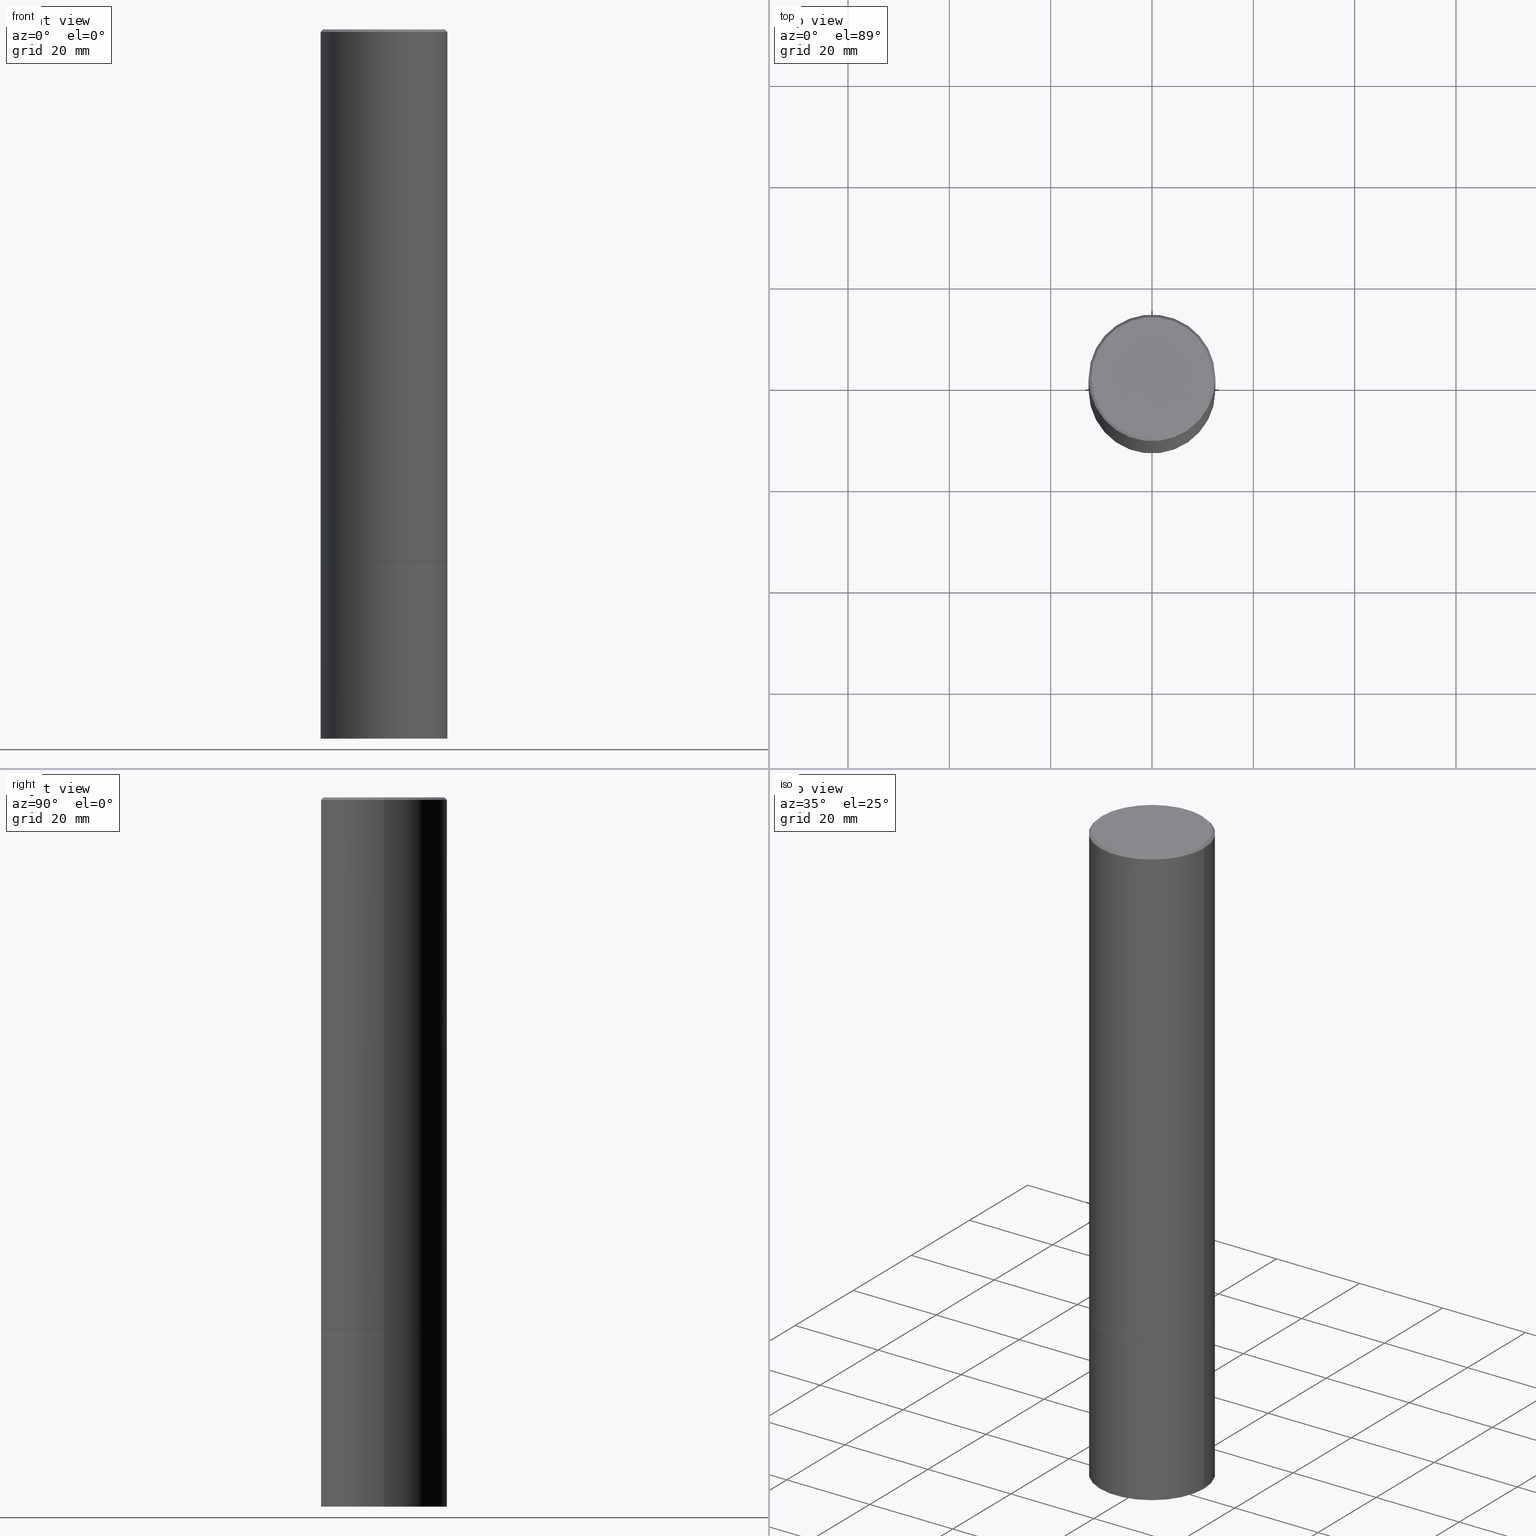
[diagram: canonical four-view strip — front | top / right | iso, engineering-drawing reading convention]
A machine part, canonical four-view strip (front | top / right | iso — engineering-drawing reading convention). The complete STEP part file that produces these views, byte-faithful:
ISO-10303-21;
HEADER;
FILE_DESCRIPTION (( 'STEP AP203' ),
    '1' );
FILE_NAME ('45002.STEP',
    '2024-02-28T08:33:19',
    ( '' ),
    ( '' ),
    'SwSTEP 2.0',
    'SolidWorks 2023',
    '' );
FILE_SCHEMA (( 'CONFIG_CONTROL_DESIGN' ));
ENDSEC;

DATA;
#1 = AXIS2_PLACEMENT_3D ( 'NONE', #114, #33, #11 ) ;
#2 = LOCAL_TIME ( 3, 33, 19.00000000000000000, #49 ) ;
#3 = FACE_OUTER_BOUND ( 'NONE', #264, .T. ) ;
#4 = ADVANCED_FACE ( 'NONE', ( #111 ), #324, .F. ) ;
#5 = PERSON ( 'UNSPECIFIED', 'UNSPECIFIED', 'UNSPECIFIED', ('UNSPECIFIED'), ('UNSPECIFIED'), ('UNSPECIFIED') ) ;
#6 = CARTESIAN_POINT ( 'NONE',  ( 1.010907895100811684E-28, -1.443308555850979562E-14, -4.133799999999999919 ) ) ;
#7 = AXIS2_PLACEMENT_3D ( 'NONE', #140, #198, #321 ) ;
#8 = AXIS2_PLACEMENT_3D ( 'NONE', #121, #335, #299 ) ;
#9 = DIRECTION ( 'NONE',  ( 1.000000000000000000, -6.982962677686264344E-15, 0.000000000000000000 ) ) ;
#10 = CC_DESIGN_APPROVAL ( #284, ( #180 ) ) ;
#11 = DIRECTION ( 'NONE',  ( -1.000000000000000000, 6.982962677686265922E-15, -4.876176775795935793E-29 ) ) ;
#12 = ADVANCED_FACE ( 'NONE', ( #86 ), #228, .T. ) ;
#13 = ORIENTED_EDGE ( 'NONE', *, *, #364, .F. ) ;
#14 = DIRECTION ( 'NONE',  ( -2.445468806185136597E-29, 3.491481338843145583E-15, 1.000000000000000000 ) ) ;
#15 = AXIS2_PLACEMENT_3D ( 'NONE', #325, #224, #270 ) ;
#16 = CALENDAR_DATE ( 2024, 28, 2 ) ;
#17 = ORIENTED_EDGE ( 'NONE', *, *, #92, .F. ) ;
#18 = EDGE_CURVE ( 'NONE', #265, #61, #288, .T. ) ;
#19 = DIRECTION ( 'NONE',  ( 1.000000000000000000, -6.982962677686264344E-15, 0.000000000000000000 ) ) ;
#20 = CARTESIAN_POINT ( 'NONE',  ( -0.4911499999999999755, -1.094325491182406373E-14, -4.133799999999999919 ) ) ;
#21 = LINE ( 'NONE', #277, #245 ) ;
#22 = EDGE_LOOP ( 'NONE', ( #302, #66, #205, #350 ) ) ;
#23 = CIRCLE ( 'NONE', #291, 0.4721499999999996255 ) ;
#24 = CIRCLE ( 'NONE', #217, 0.4921499999999999764 ) ;
#25 = ADVANCED_FACE ( 'NONE', ( #107 ), #59, .T. ) ;
#26 = PERSON_AND_ORGANIZATION ( #5, #237 ) ;
#27 = PERSON_AND_ORGANIZATION_ROLE ( 'design_owner' ) ;
#28 = ORIENTED_EDGE ( 'NONE', *, *, #92, .T. ) ;
#29 = CARTESIAN_POINT ( 'NONE',  ( 0.4921499999999999764, -1.786975064033308982E-14, -4.133799999999999919 ) ) ;
#30 = DIRECTION ( 'NONE',  ( -2.445468806185136877E-29, 3.491481338843145188E-15, 1.000000000000000000 ) ) ;
#31 =( GEOMETRIC_REPRESENTATION_CONTEXT ( 3 ) GLOBAL_UNCERTAINTY_ASSIGNED_CONTEXT ( ( #195 ) ) GLOBAL_UNIT_ASSIGNED_CONTEXT ( ( #127, #179, #182 ) ) REPRESENTATION_CONTEXT ( 'NONE', 'WORKASPACE' ) );
#32 = CIRCLE ( 'NONE', #8, 0.4921499999999999764 ) ;
#33 = DIRECTION ( 'NONE',  ( 2.438088387897960049E-29, -3.491481338843145188E-15, -1.000000000000000000 ) ) ;
#34 = CIRCLE ( 'NONE', #289, 0.4921499999999996988 ) ;
#35 = CARTESIAN_POINT ( 'NONE',  ( 4.890937612370302936E-31, -6.982962677686332285E-17, -0.02000000000000011838 ) ) ;
#36 = ORIENTED_EDGE ( 'NONE', *, *, #353, .F. ) ;
#37 = MANIFOLD_SOLID_BREP ( 'Body-Move/Copy2[2]', #272 ) ;
#38 = DATE_AND_TIME ( #341, #2 ) ;
#39 = VERTEX_POINT ( 'NONE', #222 ) ;
#40 = VECTOR ( 'NONE', #238, 39.37007874015748854 ) ;
#41 = CARTESIAN_POINT ( 'NONE',  ( -0.4721499999999996255, 3.331920641657999252E-15, 8.537024980177643606E-18 ) ) ;
#42 = MANIFOLD_SOLID_BREP ( 'Body-Move/Copy2[1]', #354 ) ;
#43 = DIRECTION ( 'NONE',  ( 1.000000000000000000, 0.000000000000000000, 0.000000000000000000 ) ) ;
#44 = AXIS2_PLACEMENT_3D ( 'NONE', #183, #126, #19 ) ;
#45 = FACE_OUTER_BOUND ( 'NONE', #172, .T. ) ;
#46 = ORIENTED_EDGE ( 'NONE', *, *, #18, .F. ) ;
#47 = LINE ( 'NONE', #361, #58 ) ;
#48 = EDGE_LOOP ( 'NONE', ( #276, #309 ) ) ;
#49 = COORDINATED_UNIVERSAL_TIME_OFFSET ( 5, 0, .BEHIND. ) ;
#50 = APPROVAL_DATE_TIME ( #167, #170 ) ;
#51 = ORIENTED_EDGE ( 'NONE', *, *, #135, .F. ) ;
#52 = CARTESIAN_POINT ( 'NONE',  ( 1.010907895100811684E-28, -1.443308555850979562E-14, -4.133799999999999919 ) ) ;
#53 = ORIENTED_EDGE ( 'NONE', *, *, #281, .F. ) ;
#54 = DIRECTION ( 'NONE',  ( 0.7071067811866199593, -2.468850131083015945E-15, 0.7071067811864750752 ) ) ;
#55 = DIRECTION ( 'NONE',  ( -2.445468806185136597E-29, 3.491481338843145583E-15, 1.000000000000000000 ) ) ;
#56 = ADVANCED_FACE ( 'NONE', ( #110 ), #207, .T. ) ;
#57 = CARTESIAN_POINT ( 'NONE',  ( 1.010907895100811684E-28, -1.443308555850979562E-14, -4.133799999999999919 ) ) ;
#58 = VECTOR ( 'NONE', #93, 39.37007874015748143 ) ;
#59 = CYLINDRICAL_SURFACE ( 'NONE', #7, 0.4921499999999999764 ) ;
#60 = VERTEX_POINT ( 'NONE', #171 ) ;
#61 = VERTEX_POINT ( 'NONE', #296 ) ;
#62 = CARTESIAN_POINT ( 'NONE',  ( 0.000000000000000000, 0.000000000000000000, 0.000000000000000000 ) ) ;
#63 = AXIS2_PLACEMENT_3D ( 'NONE', #197, #344, #279 ) ;
#64 = EDGE_LOOP ( 'NONE', ( #46, #358, #138, #36 ) ) ;
#65 = PERSON_AND_ORGANIZATION ( #5, #237 ) ;
#66 = ORIENTED_EDGE ( 'NONE', *, *, #345, .T. ) ;
#67 = ADVANCED_FACE ( 'NONE', ( #133 ), #99, .T. ) ;
#68 = SHAPE_DEFINITION_REPRESENTATION ( #300, #142 ) ;
#69 = AXIS2_PLACEMENT_3D ( 'NONE', #6, #71, #359 ) ;
#70 = DIRECTION ( 'NONE',  ( -1.000000000000000000, 6.982962677686265922E-15, -4.876176775795935793E-29 ) ) ;
#71 = DIRECTION ( 'NONE',  ( -2.445468806185136597E-29, 3.491481338843145583E-15, 1.000000000000000000 ) ) ;
#72 = DIRECTION ( 'NONE',  ( 1.000000000000000000, -6.982962677686265922E-15, 4.876176775795935793E-29 ) ) ;
#73 = EDGE_LOOP ( 'NONE', ( #311, #164, #290, #235 ) ) ;
#74 = EDGE_CURVE ( 'NONE', #286, #60, #77, .T. ) ;
#75 = ORIENTED_EDGE ( 'NONE', *, *, #345, .F. ) ;
#76 = LINE ( 'NONE', #20, #360 ) ;
#77 = CIRCLE ( 'NONE', #200, 0.4921499999999996988 ) ;
#78 = ORIENTED_EDGE ( 'NONE', *, *, #247, .T. ) ;
#79 = DIRECTION ( 'NONE',  ( 1.000000000000000000, -6.982962677686265922E-15, 4.876176775795935793E-29 ) ) ;
#80 = APPROVAL_ROLE ( '' ) ;
#81 = APPROVAL_ROLE ( '' ) ;
#82 = PRODUCT ( '45002', '45002', '', ( #251 ) ) ;
#83 = ADVANCED_FACE ( 'NONE', ( #115 ), #118, .T. ) ;
#84 = COORDINATED_UNIVERSAL_TIME_OFFSET ( 5, 0, .BEHIND. ) ;
#85 = APPROVAL_ROLE ( '' ) ;
#86 = FACE_OUTER_BOUND ( 'NONE', #268, .T. ) ;
#87 = VECTOR ( 'NONE', #30, 39.37007874015748143 ) ;
#88 = APPROVAL_DATE_TIME ( #191, #284 ) ;
#89 = ORIENTED_EDGE ( 'NONE', *, *, #281, .T. ) ;
#90 = PERSON_AND_ORGANIZATION ( #5, #237 ) ;
#91 = CIRCLE ( 'NONE', #188, 0.4911499999999999755 ) ;
#92 = EDGE_CURVE ( 'NONE', #39, #286, #21, .T. ) ;
#93 = DIRECTION ( 'NONE',  ( -2.445468806185136877E-29, 3.491481338843145188E-15, 1.000000000000000000 ) ) ;
#94 = CARTESIAN_POINT ( 'NONE',  ( -0.4921499999999999764, -1.334178012692939009E-14, -5.511800000000000033 ) ) ;
#95 = ORIENTED_EDGE ( 'NONE', *, *, #108, .F. ) ;
#96 = CYLINDRICAL_SURFACE ( 'NONE', #223, 0.4921499999999998098 ) ;
#97 = PLANE ( 'NONE',  #193 ) ;
#98 = DATE_TIME_ROLE ( 'classification_date' ) ;
#99 = CONICAL_SURFACE ( 'NONE', #333, 0.4921499999999996988, 0.7853981633974466137 ) ;
#100 = APPROVAL_PERSON_ORGANIZATION ( #119, #220, #80 ) ;
#101 = FACE_OUTER_BOUND ( 'NONE', #293, .T. ) ;
#102 = VERTEX_POINT ( 'NONE', #231 ) ;
#103 = CARTESIAN_POINT ( 'NONE',  ( 0.4721499999999996255, -3.342703923013973396E-15, 8.537024980224040028E-18 ) ) ;
#104 = CARTESIAN_POINT ( 'NONE',  ( 4.890937612370302936E-31, -6.982962677686332285E-17, -0.02000000000000011838 ) ) ;
#105 = PERSON_AND_ORGANIZATION ( #5, #237 ) ;
#106 = FACE_OUTER_BOUND ( 'NONE', #73, .T. ) ;
#107 = FACE_OUTER_BOUND ( 'NONE', #330, .T. ) ;
#108 = EDGE_CURVE ( 'NONE', #214, #186, #23, .T. ) ;
#109 = AXIS2_PLACEMENT_3D ( 'NONE', #35, #145, #352 ) ;
#110 = FACE_OUTER_BOUND ( 'NONE', #22, .T. ) ;
#111 = FACE_OUTER_BOUND ( 'NONE', #48, .T. ) ;
#112 = CARTESIAN_POINT ( 'NONE',  ( -2.087702828670439639E-46, 2.980686340760894400E-32, 8.537024980200822558E-18 ) ) ;
#113 = DIMENSIONAL_EXPONENTS ( 1.000000000000000000, 0.000000000000000000, 0.000000000000000000, 0.000000000000000000, 0.000000000000000000, 0.000000000000000000, 0.000000000000000000 ) ;
#114 = CARTESIAN_POINT ( 'NONE',  ( 3.436665081823396751E-15, 0.4921499999999855435, -4.133800000000001695 ) ) ;
#115 = FACE_OUTER_BOUND ( 'NONE', #64, .T. ) ;
#116 = EDGE_CURVE ( 'NONE', #130, #61, #312, .T. ) ;
#117 = CC_DESIGN_APPROVAL ( #170, ( #156 ) ) ;
#118 = CYLINDRICAL_SURFACE ( 'NONE', #262, 0.4921499999999999764 ) ;
#119 = PERSON_AND_ORGANIZATION ( #5, #237 ) ;
#120 = ORIENTED_EDGE ( 'NONE', *, *, #232, .F. ) ;
#121 = CARTESIAN_POINT ( 'NONE',  ( 1.010663348220193347E-28, -1.442959407717095419E-14, -4.132800000000000473 ) ) ;
#122 = FACE_OUTER_BOUND ( 'NONE', #185, .T. ) ;
#123 = CC_DESIGN_DATE_AND_TIME_ASSIGNMENT ( #218, #98, ( #180 ) ) ;
#124 = CIRCLE ( 'NONE', #44, 0.4911499999999999755 ) ;
#125 =( LENGTH_UNIT ( ) NAMED_UNIT ( * ) SI_UNIT ( $, .METRE. ) );
#126 = DIRECTION ( 'NONE',  ( -2.445468806185136597E-29, 3.491481338843145583E-15, 1.000000000000000000 ) ) ;
#127 =( CONVERSION_BASED_UNIT ( 'INCH', #242 ) LENGTH_UNIT ( ) NAMED_UNIT ( #113 ) );
#128 = DIRECTION ( 'NONE',  ( -2.445468806185136597E-29, 3.491481338843145583E-15, 1.000000000000000000 ) ) ;
#129 = DIRECTION ( 'NONE',  ( 2.438088387897960049E-29, -3.491481338843145188E-15, -1.000000000000000000 ) ) ;
#130 = VERTEX_POINT ( 'NONE', #29 ) ;
#131 = PERSON_AND_ORGANIZATION ( #5, #237 ) ;
#132 = LOCAL_TIME ( 3, 33, 19.00000000000000000, #278 ) ;
#133 = FACE_OUTER_BOUND ( 'NONE', #298, .T. ) ;
#134 = DIRECTION ( 'NONE',  ( 1.000000000000000000, -6.982962677686264344E-15, 0.000000000000000000 ) ) ;
#135 = EDGE_CURVE ( 'NONE', #186, #214, #169, .T. ) ;
#136 = DIRECTION ( 'NONE',  ( 1.000000000000000000, -6.982962677686265922E-15, 0.000000000000000000 ) ) ;
#137 = VECTOR ( 'NONE', #139, 39.37007874015748854 ) ;
#138 = ORIENTED_EDGE ( 'NONE', *, *, #308, .T. ) ;
#139 = DIRECTION ( 'NONE',  ( -0.7071067811865462405, 2.468850131082243650E-15, -0.7071067811865486830 ) ) ;
#140 = CARTESIAN_POINT ( 'NONE',  ( 0.000000000000000000, 0.000000000000000000, 0.000000000000000000 ) ) ;
#141 = EDGE_CURVE ( 'NONE', #214, #286, #239, .T. ) ;
#142 = ADVANCED_BREP_SHAPE_REPRESENTATION ( '45002', ( #42, #37, #254 ), #31 ) ;
#143 = AXIS2_PLACEMENT_3D ( 'NONE', #260, #297, #337 ) ;
#144 = ORIENTED_EDGE ( 'NONE', *, *, #342, .F. ) ;
#145 = DIRECTION ( 'NONE',  ( 2.445468806185136597E-29, -3.491481338843145583E-15, -1.000000000000000000 ) ) ;
#146 = DIRECTION ( 'NONE',  ( -2.445468806185136597E-29, 3.491481338843145583E-15, 1.000000000000000000 ) ) ;
#147 = CC_DESIGN_PERSON_AND_ORGANIZATION_ASSIGNMENT ( #131, #210, ( #266 ) ) ;
#148 = COORDINATED_UNIVERSAL_TIME_OFFSET ( 5, 0, .BEHIND. ) ;
#149 = DIRECTION ( 'NONE',  ( 1.000000000000000000, -6.982962677686265922E-15, 0.000000000000000000 ) ) ;
#150 = CARTESIAN_POINT ( 'NONE',  ( 1.347893496593123646E-28, -1.924434684343564878E-14, -5.511800000000000033 ) ) ;
#151 = APPLICATION_PROTOCOL_DEFINITION ( 'international standard', 'config_control_design', 1994, #316 ) ;
#152 = CARTESIAN_POINT ( 'NONE',  ( 0.000000000000000000, 0.000000000000000000, 0.000000000000000000 ) ) ;
#153 = CIRCLE ( 'NONE', #69, 0.4921499999999999764 ) ;
#154 = CARTESIAN_POINT ( 'NONE',  ( 0.4921499999999996988, -3.446223716380120377E-15, -0.02000000000000011838 ) ) ;
#155 = DIRECTION ( 'NONE',  ( 1.000000000000000000, -6.982962677686265922E-15, 4.876176775795935793E-29 ) ) ;
#156 = PRODUCT_DEFINITION ( 'UNKNOWN', '', #266, #165 ) ;
#157 = CARTESIAN_POINT ( 'NONE',  ( 3.436665081823430672E-15, 0.4921499999999807140, -5.511800000000001809 ) ) ;
#158 = ORIENTED_EDGE ( 'NONE', *, *, #141, .T. ) ;
#159 = APPROVAL_DATE_TIME ( #38, #220 ) ;
#160 = VERTEX_POINT ( 'NONE', #303 ) ;
#161 = PERSON_AND_ORGANIZATION ( #5, #237 ) ;
#162 = LOCAL_TIME ( 3, 33, 19.00000000000000000, #84 ) ;
#163 = DIRECTION ( 'NONE',  ( -2.445468806185136597E-29, 3.491481338843145583E-15, 1.000000000000000000 ) ) ;
#164 = ORIENTED_EDGE ( 'NONE', *, *, #206, .T. ) ;
#165 = DESIGN_CONTEXT ( 'detailed design', #236, 'design' ) ;
#166 = CARTESIAN_POINT ( 'NONE',  ( 4.890937612370302936E-31, -6.982962677686332285E-17, -0.02000000000000011838 ) ) ;
#167 = DATE_AND_TIME ( #221, #162 ) ;
#168 = DIRECTION ( 'NONE',  ( -2.445468806185136597E-29, 3.491481338843145583E-15, 1.000000000000000000 ) ) ;
#169 = CIRCLE ( 'NONE', #15, 0.4721499999999996255 ) ;
#170 = APPROVAL ( #225, 'UNSPECIFIED' ) ;
#171 = CARTESIAN_POINT ( 'NONE',  ( 0.4921499999999996988, -3.446223716380120377E-15, -0.02000000000000011838 ) ) ;
#172 = EDGE_LOOP ( 'NONE', ( #78, #28, #144, #53 ) ) ;
#173 = CC_DESIGN_PERSON_AND_ORGANIZATION_ASSIGNMENT ( #90, #332, ( #266 ) ) ;
#174 = CARTESIAN_POINT ( 'NONE',  ( -0.4921499999999996988, 3.366835455046430506E-15, -0.02000000000000011838 ) ) ;
#175 = CIRCLE ( 'NONE', #295, 0.4921499999999999764 ) ;
#176 = ADVANCED_FACE ( 'NONE', ( #3 ), #331, .F. ) ;
#177 = ORIENTED_EDGE ( 'NONE', *, *, #323, .F. ) ;
#178 = CALENDAR_DATE ( 2024, 28, 2 ) ;
#179 =( NAMED_UNIT ( * ) PLANE_ANGLE_UNIT ( ) SI_UNIT ( $, .RADIAN. ) );
#180 = SECURITY_CLASSIFICATION ( '', '', #253 ) ;
#181 = ORIENTED_EDGE ( 'NONE', *, *, #141, .F. ) ;
#182 =( NAMED_UNIT ( * ) SI_UNIT ( $, .STERADIAN. ) SOLID_ANGLE_UNIT ( ) );
#183 = CARTESIAN_POINT ( 'NONE',  ( 1.010907895100811684E-28, -1.443308555850979562E-14, -4.133799999999999919 ) ) ;
#184 = CARTESIAN_POINT ( 'NONE',  ( 4.890937612370302936E-31, -6.982962677686332285E-17, -0.02000000000000011838 ) ) ;
#185 = EDGE_LOOP ( 'NONE', ( #17, #366, #89, #280 ) ) ;
#186 = VERTEX_POINT ( 'NONE', #103 ) ;
#187 = AXIS2_PLACEMENT_3D ( 'NONE', #57, #259, #9 ) ;
#188 = AXIS2_PLACEMENT_3D ( 'NONE', #52, #163, #134 ) ;
#189 = VERTEX_POINT ( 'NONE', #244 ) ;
#190 = DIRECTION ( 'NONE',  ( -0.7071067811866199593, 7.493145998870616062E-15, 0.7071067811864750752 ) ) ;
#191 = DATE_AND_TIME ( #357, #334 ) ;
#192 = DIRECTION ( 'NONE',  ( -2.445468806185136597E-29, 3.491481338843145583E-15, 1.000000000000000000 ) ) ;
#193 = AXIS2_PLACEMENT_3D ( 'NONE', #157, #129, #70 ) ;
#194 = CC_DESIGN_DATE_AND_TIME_ASSIGNMENT ( #365, #329, ( #156 ) ) ;
#195 = UNCERTAINTY_MEASURE_WITH_UNIT (LENGTH_MEASURE( 1.000000000000000082E-05 ), #127, 'distance_accuracy_value', 'NONE');
#196 = PLANE ( 'NONE',  #63 ) ;
#197 = CARTESIAN_POINT ( 'NONE',  ( 3.297005828269567997E-15, 0.4721499999999996255, -1.644234401644689488E-15 ) ) ;
#198 = DIRECTION ( 'NONE',  ( -2.445468806185136597E-29, 3.491481338843145583E-15, 1.000000000000000000 ) ) ;
#199 = ADVANCED_FACE ( 'NONE', ( #122 ), #339, .T. ) ;
#200 = AXIS2_PLACEMENT_3D ( 'NONE', #184, #14, #326 ) ;
#201 = CC_DESIGN_APPROVAL ( #220, ( #266 ) ) ;
#202 = CC_DESIGN_SECURITY_CLASSIFICATION ( #180, ( #266 ) ) ;
#203 = ORIENTED_EDGE ( 'NONE', *, *, #342, .T. ) ;
#204 = DIRECTION ( 'NONE',  ( -1.000000000000000000, 6.982962677686265922E-15, 0.000000000000000000 ) ) ;
#205 = ORIENTED_EDGE ( 'NONE', *, *, #347, .T. ) ;
#206 = EDGE_CURVE ( 'NONE', #250, #39, #76, .T. ) ;
#207 = CONICAL_SURFACE ( 'NONE', #187, 0.4911499999999999755, 0.7853981633975507526 ) ;
#208 = ORIENTED_EDGE ( 'NONE', *, *, #308, .F. ) ;
#209 = CARTESIAN_POINT ( 'NONE',  ( 0.4921499999999999764, -3.436665081823295777E-15, 2.399810400207969603E-29 ) ) ;
#210 = PERSON_AND_ORGANIZATION_ROLE ( 'design_supplier' ) ;
#211 = AXIS2_PLACEMENT_3D ( 'NONE', #317, #318, #72 ) ;
#212 = CARTESIAN_POINT ( 'NONE',  ( -0.4921499999999996988, 3.366835455046430506E-15, -0.02000000000000011838 ) ) ;
#213 = DIRECTION ( 'NONE',  ( -2.445468806185136597E-29, 3.491481338843145583E-15, 1.000000000000000000 ) ) ;
#214 = VERTEX_POINT ( 'NONE', #41 ) ;
#215 = DIRECTION ( 'NONE',  ( -2.445468806185136597E-29, 3.491481338843145583E-15, 1.000000000000000000 ) ) ;
#216 = PERSON_AND_ORGANIZATION_ROLE ( 'classification_officer' ) ;
#217 = AXIS2_PLACEMENT_3D ( 'NONE', #150, #215, #267 ) ;
#218 = DATE_AND_TIME ( #16, #132 ) ;
#219 = EDGE_CURVE ( 'NONE', #189, #265, #24, .T. ) ;
#220 = APPROVAL ( #282, 'UNSPECIFIED' ) ;
#221 = CALENDAR_DATE ( 2024, 28, 2 ) ;
#222 = CARTESIAN_POINT ( 'NONE',  ( -0.4921499999999999764, -3.752775777930573480E-15, -4.132800000000000473 ) ) ;
#223 = AXIS2_PLACEMENT_3D ( 'NONE', #252, #213, #155 ) ;
#224 = DIRECTION ( 'NONE',  ( -2.445468806185136597E-29, 3.491481338843145583E-15, 1.000000000000000000 ) ) ;
#225 = APPROVAL_STATUS ( 'not_yet_approved' ) ;
#226 = CC_DESIGN_PERSON_AND_ORGANIZATION_ASSIGNMENT ( #256, #27, ( #82 ) ) ;
#227 = CC_DESIGN_PERSON_AND_ORGANIZATION_ASSIGNMENT ( #65, #216, ( #180 ) ) ;
#228 = CONICAL_SURFACE ( 'NONE', #109, 0.4921499999999996988, 0.7853981633974466137 ) ;
#229 = VECTOR ( 'NONE', #243, 39.37007874015748143 ) ;
#230 = ORIENTED_EDGE ( 'NONE', *, *, #108, .T. ) ;
#231 = CARTESIAN_POINT ( 'NONE',  ( 0.4911499999999999755, -1.786276767765540380E-14, -4.133799999999999919 ) ) ;
#232 = EDGE_CURVE ( 'NONE', #102, #250, #124, .T. ) ;
#233 = PRODUCT_RELATED_PRODUCT_CATEGORY ( 'detail', '', ( #82 ) ) ;
#234 = ORIENTED_EDGE ( 'NONE', *, *, #135, .T. ) ;
#235 = ORIENTED_EDGE ( 'NONE', *, *, #347, .F. ) ;
#236 = APPLICATION_CONTEXT ( 'configuration controlled 3d designs of mechanical parts and assemblies' ) ;
#237 = ORGANIZATION ( 'UNSPECIFIED', 'UNSPECIFIED', '' ) ;
#238 = DIRECTION ( 'NONE',  ( 0.7071067811865462405, -7.319954787623251312E-15, -0.7071067811865486830 ) ) ;
#239 = LINE ( 'NONE', #174, #137 ) ;
#240 = APPROVAL_STATUS ( 'not_yet_approved' ) ;
#241 = ORIENTED_EDGE ( 'NONE', *, *, #18, .T. ) ;
#242 = LENGTH_MEASURE_WITH_UNIT ( LENGTH_MEASURE( 0.02539999999999999897 ), #125 );
#243 = DIRECTION ( 'NONE',  ( -2.445468806185136877E-29, 3.491481338843145188E-15, 1.000000000000000000 ) ) ;
#244 = CARTESIAN_POINT ( 'NONE',  ( 0.4921499999999999764, -2.268101192525894613E-14, -5.511800000000000033 ) ) ;
#245 = VECTOR ( 'NONE', #362, 39.37007874015748143 ) ;
#246 = VECTOR ( 'NONE', #54, 39.37007874015748143 ) ;
#247 = EDGE_CURVE ( 'NONE', #160, #39, #32, .T. ) ;
#248 = CARTESIAN_POINT ( 'NONE',  ( 0.000000000000000000, 0.000000000000000000, 0.000000000000000000 ) ) ;
#249 = CARTESIAN_POINT ( 'NONE',  ( -0.4911499999999999755, -1.093795645747584133E-14, -4.133799999999999919 ) ) ;
#250 = VERTEX_POINT ( 'NONE', #249 ) ;
#251 = MECHANICAL_CONTEXT ( 'NONE', #316, 'mechanical' ) ;
#252 = CARTESIAN_POINT ( 'NONE',  ( 0.000000000000000000, 0.000000000000000000, 0.000000000000000000 ) ) ;
#253 = SECURITY_CLASSIFICATION_LEVEL ( 'unclassified' ) ;
#254 = AXIS2_PLACEMENT_3D ( 'NONE', #248, #338, #43 ) ;
#255 = CC_DESIGN_PERSON_AND_ORGANIZATION_ASSIGNMENT ( #161, #306, ( #156 ) ) ;
#256 = PERSON_AND_ORGANIZATION ( #5, #237 ) ;
#257 = DIRECTION ( 'NONE',  ( 1.000000000000000000, -6.982962677686264344E-15, 0.000000000000000000 ) ) ;
#258 = CARTESIAN_POINT ( 'NONE',  ( 1.010907895100811684E-28, -1.443308555850979562E-14, -4.133799999999999919 ) ) ;
#259 = DIRECTION ( 'NONE',  ( -2.445468806185136597E-29, 3.491481338843145583E-15, 1.000000000000000000 ) ) ;
#260 = CARTESIAN_POINT ( 'NONE',  ( 1.010907895100811684E-28, -1.443308555850979562E-14, -4.133799999999999919 ) ) ;
#261 = DIRECTION ( 'NONE',  ( 2.445468806185136597E-29, -3.491481338843145583E-15, -1.000000000000000000 ) ) ;
#262 = AXIS2_PLACEMENT_3D ( 'NONE', #62, #146, #263 ) ;
#263 = DIRECTION ( 'NONE',  ( 1.000000000000000000, -6.982962677686265922E-15, 4.876176775795935793E-29 ) ) ;
#264 = EDGE_LOOP ( 'NONE', ( #120, #75 ) ) ;
#265 = VERTEX_POINT ( 'NONE', #94 ) ;
#266 = PRODUCT_DEFINITION_FORMATION_WITH_SPECIFIED_SOURCE ( 'ANY', '', #82, .NOT_KNOWN. ) ;
#267 = DIRECTION ( 'NONE',  ( 1.000000000000000000, -6.982962677686265922E-15, 0.000000000000000000 ) ) ;
#268 = EDGE_LOOP ( 'NONE', ( #13, #95, #158, #336 ) ) ;
#269 = EDGE_LOOP ( 'NONE', ( #315, #177 ) ) ;
#270 = DIRECTION ( 'NONE',  ( 1.000000000000000000, -6.982962677686265922E-15, 4.876006802227162976E-29 ) ) ;
#271 = EDGE_CURVE ( 'NONE', #39, #160, #175, .T. ) ;
#272 = CLOSED_SHELL ( 'NONE', ( #328, #287, #67, #12, #199, #56, #176, #314 ) ) ;
#273 = DIRECTION ( 'NONE',  ( -2.445468806185136597E-29, 3.491481338843145583E-15, 1.000000000000000000 ) ) ;
#274 = CIRCLE ( 'NONE', #322, 0.4921499999999999764 ) ;
#275 = DIRECTION ( 'NONE',  ( -2.445468806185136597E-29, 3.491481338843145583E-15, 1.000000000000000000 ) ) ;
#276 = ORIENTED_EDGE ( 'NONE', *, *, #116, .T. ) ;
#277 = CARTESIAN_POINT ( 'NONE',  ( -0.4921499999999998098, 3.496936074043331714E-15, -2.420853904668950949E-29 ) ) ;
#278 = COORDINATED_UNIVERSAL_TIME_OFFSET ( 5, 0, .BEHIND. ) ;
#279 = DIRECTION ( 'NONE',  ( -1.000000000000000000, 6.982962677686265922E-15, -4.876176775795935793E-29 ) ) ;
#280 = ORIENTED_EDGE ( 'NONE', *, *, #74, .F. ) ;
#281 = EDGE_CURVE ( 'NONE', #160, #60, #47, .T. ) ;
#282 = APPROVAL_STATUS ( 'not_yet_approved' ) ;
#283 = APPROVAL_PERSON_ORGANIZATION ( #105, #170, #85 ) ;
#284 = APPROVAL ( #240, 'UNSPECIFIED' ) ;
#285 = DIRECTION ( 'NONE',  ( 1.000000000000000000, -6.982962677686265922E-15, 4.876006802227162976E-29 ) ) ;
#286 = VERTEX_POINT ( 'NONE', #212 ) ;
#287 = ADVANCED_FACE ( 'NONE', ( #45 ), #96, .T. ) ;
#288 = LINE ( 'NONE', #349, #87 ) ;
#289 = AXIS2_PLACEMENT_3D ( 'NONE', #104, #192, #310 ) ;
#290 = ORIENTED_EDGE ( 'NONE', *, *, #247, .F. ) ;
#291 = AXIS2_PLACEMENT_3D ( 'NONE', #112, #275, #285 ) ;
#292 = ADVANCED_FACE ( 'NONE', ( #363 ), #97, .T. ) ;
#293 = EDGE_LOOP ( 'NONE', ( #230, #234 ) ) ;
#294 = COORDINATED_UNIVERSAL_TIME_OFFSET ( 5, 0, .BEHIND. ) ;
#295 = AXIS2_PLACEMENT_3D ( 'NONE', #304, #128, #149 ) ;
#296 = CARTESIAN_POINT ( 'NONE',  ( -0.4921499999999999764, -1.334178012692939009E-14, -4.133799999999999919 ) ) ;
#297 = DIRECTION ( 'NONE',  ( -2.445468806185136597E-29, 3.491481338843145583E-15, 1.000000000000000000 ) ) ;
#298 = EDGE_LOOP ( 'NONE', ( #51, #351, #203, #181 ) ) ;
#299 = DIRECTION ( 'NONE',  ( 1.000000000000000000, -6.982962677686265922E-15, 0.000000000000000000 ) ) ;
#300 = PRODUCT_DEFINITION_SHAPE ( 'NONE', 'NONE',  #156 ) ;
#301 = LINE ( 'NONE', #154, #40 ) ;
#302 = ORIENTED_EDGE ( 'NONE', *, *, #206, .F. ) ;
#303 = CARTESIAN_POINT ( 'NONE',  ( 0.4921499999999999764, -1.786625915899424839E-14, -4.132800000000000473 ) ) ;
#304 = CARTESIAN_POINT ( 'NONE',  ( 1.010663348220193347E-28, -1.442959407717095419E-14, -4.132800000000000473 ) ) ;
#305 = CONICAL_SURFACE ( 'NONE', #327, 0.4911499999999999755, 0.7853981633975507526 ) ;
#306 = PERSON_AND_ORGANIZATION_ROLE ( 'creator' ) ;
#307 = ORIENTED_EDGE ( 'NONE', *, *, #219, .T. ) ;
#308 = EDGE_CURVE ( 'NONE', #189, #130, #356, .T. ) ;
#309 = ORIENTED_EDGE ( 'NONE', *, *, #353, .T. ) ;
#310 = DIRECTION ( 'NONE',  ( 1.000000000000000000, -6.982962677686265922E-15, 0.000000000000000000 ) ) ;
#311 = ORIENTED_EDGE ( 'NONE', *, *, #232, .T. ) ;
#312 = CIRCLE ( 'NONE', #143, 0.4921499999999999764 ) ;
#313 = CARTESIAN_POINT ( 'NONE',  ( 0.4911499999999999755, -1.786276767765540380E-14, -4.133799999999999919 ) ) ;
#314 = ADVANCED_FACE ( 'NONE', ( #101 ), #196, .F. ) ;
#315 = ORIENTED_EDGE ( 'NONE', *, *, #219, .F. ) ;
#316 = APPLICATION_CONTEXT ( 'configuration controlled 3d designs of mechanical parts and assemblies' ) ;
#317 = CARTESIAN_POINT ( 'NONE',  ( 1.010907895100811684E-28, -1.443308555850979562E-14, -4.133799999999999919 ) ) ;
#318 = DIRECTION ( 'NONE',  ( -2.438088387897960049E-29, 3.491481338843145188E-15, 1.000000000000000000 ) ) ;
#319 = ORIENTED_EDGE ( 'NONE', *, *, #116, .F. ) ;
#320 = CARTESIAN_POINT ( 'NONE',  ( 1.347893496593123646E-28, -1.924434684343564878E-14, -5.511800000000000033 ) ) ;
#321 = DIRECTION ( 'NONE',  ( 1.000000000000000000, -6.982962677686265922E-15, 4.876176775795935793E-29 ) ) ;
#322 = AXIS2_PLACEMENT_3D ( 'NONE', #320, #55, #136 ) ;
#323 = EDGE_CURVE ( 'NONE', #265, #189, #274, .T. ) ;
#324 = PLANE ( 'NONE',  #1 ) ;
#325 = CARTESIAN_POINT ( 'NONE',  ( -2.087702828670439639E-46, 2.980686340760894400E-32, 8.537024980200822558E-18 ) ) ;
#326 = DIRECTION ( 'NONE',  ( 1.000000000000000000, -6.982962677686265922E-15, 0.000000000000000000 ) ) ;
#327 = AXIS2_PLACEMENT_3D ( 'NONE', #258, #168, #257 ) ;
#328 = ADVANCED_FACE ( 'NONE', ( #106 ), #305, .T. ) ;
#329 = DATE_TIME_ROLE ( 'creation_date' ) ;
#330 = EDGE_LOOP ( 'NONE', ( #307, #241, #319, #208 ) ) ;
#331 = PLANE ( 'NONE',  #211 ) ;
#332 = PERSON_AND_ORGANIZATION_ROLE ( 'creator' ) ;
#333 = AXIS2_PLACEMENT_3D ( 'NONE', #166, #261, #204 ) ;
#334 = LOCAL_TIME ( 3, 33, 19.00000000000000000, #148 ) ;
#335 = DIRECTION ( 'NONE',  ( -2.445468806185136597E-29, 3.491481338843145583E-15, 1.000000000000000000 ) ) ;
#336 = ORIENTED_EDGE ( 'NONE', *, *, #74, .T. ) ;
#337 = DIRECTION ( 'NONE',  ( 1.000000000000000000, -6.982962677686261977E-15, 0.000000000000000000 ) ) ;
#338 = DIRECTION ( 'NONE',  ( 0.000000000000000000, 0.000000000000000000, 1.000000000000000000 ) ) ;
#339 = CYLINDRICAL_SURFACE ( 'NONE', #355, 0.4921499999999998098 ) ;
#340 = LOCAL_TIME ( 3, 33, 19.00000000000000000, #294 ) ;
#341 = CALENDAR_DATE ( 2024, 28, 2 ) ;
#342 = EDGE_CURVE ( 'NONE', #60, #286, #34, .T. ) ;
#343 = APPLICATION_PROTOCOL_DEFINITION ( 'international standard', 'config_control_design', 1994, #236 ) ;
#344 = DIRECTION ( 'NONE',  ( 2.438088387897960049E-29, -3.491481338843145188E-15, -1.000000000000000000 ) ) ;
#345 = EDGE_CURVE ( 'NONE', #250, #102, #91, .T. ) ;
#346 = LINE ( 'NONE', #313, #246 ) ;
#347 = EDGE_CURVE ( 'NONE', #102, #160, #346, .T. ) ;
#348 = APPROVAL_PERSON_ORGANIZATION ( #26, #284, #81 ) ;
#349 = CARTESIAN_POINT ( 'NONE',  ( -0.4921499999999999764, 3.496936074043332897E-15, -2.420853904668951509E-29 ) ) ;
#350 = ORIENTED_EDGE ( 'NONE', *, *, #271, .F. ) ;
#351 = ORIENTED_EDGE ( 'NONE', *, *, #364, .T. ) ;
#352 = DIRECTION ( 'NONE',  ( -1.000000000000000000, 6.982962677686265922E-15, 0.000000000000000000 ) ) ;
#353 = EDGE_CURVE ( 'NONE', #61, #130, #153, .T. ) ;
#354 = CLOSED_SHELL ( 'NONE', ( #25, #292, #4, #83 ) ) ;
#355 = AXIS2_PLACEMENT_3D ( 'NONE', #152, #273, #79 ) ;
#356 = LINE ( 'NONE', #209, #229 ) ;
#357 = CALENDAR_DATE ( 2024, 28, 2 ) ;
#358 = ORIENTED_EDGE ( 'NONE', *, *, #323, .T. ) ;
#359 = DIRECTION ( 'NONE',  ( 1.000000000000000000, -6.982962677686261977E-15, 0.000000000000000000 ) ) ;
#360 = VECTOR ( 'NONE', #190, 39.37007874015748143 ) ;
#361 = CARTESIAN_POINT ( 'NONE',  ( 0.4921499999999998098, -3.436665081823294593E-15, 2.399810400207968762E-29 ) ) ;
#362 = DIRECTION ( 'NONE',  ( -2.445468806185136877E-29, 3.491481338843145188E-15, 1.000000000000000000 ) ) ;
#363 = FACE_OUTER_BOUND ( 'NONE', #269, .T. ) ;
#364 = EDGE_CURVE ( 'NONE', #186, #60, #301, .T. ) ;
#365 = DATE_AND_TIME ( #178, #340 ) ;
#366 = ORIENTED_EDGE ( 'NONE', *, *, #271, .T. ) ;
ENDSEC;
END-ISO-10303-21;
